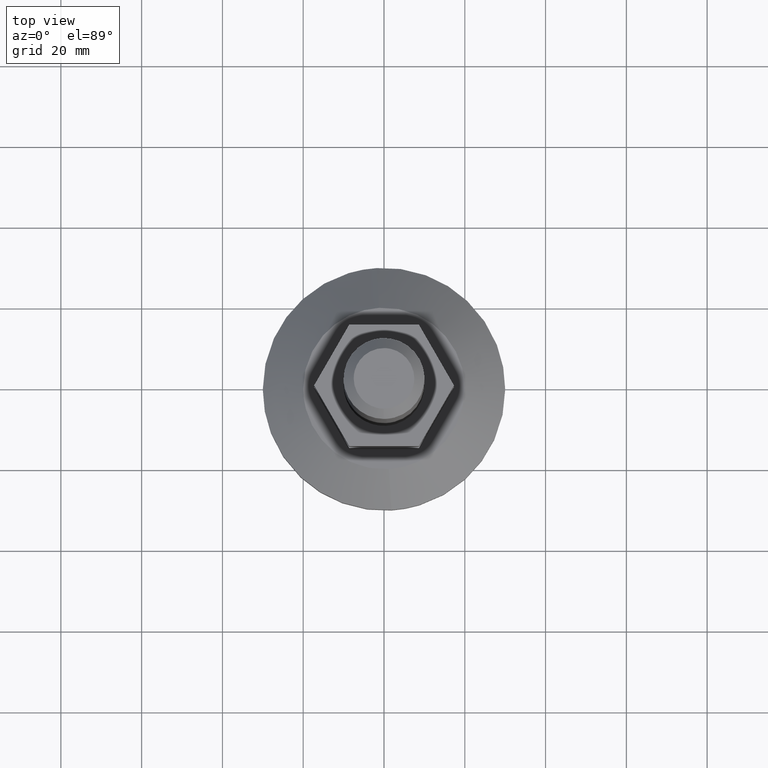
[diagram: clean part render]
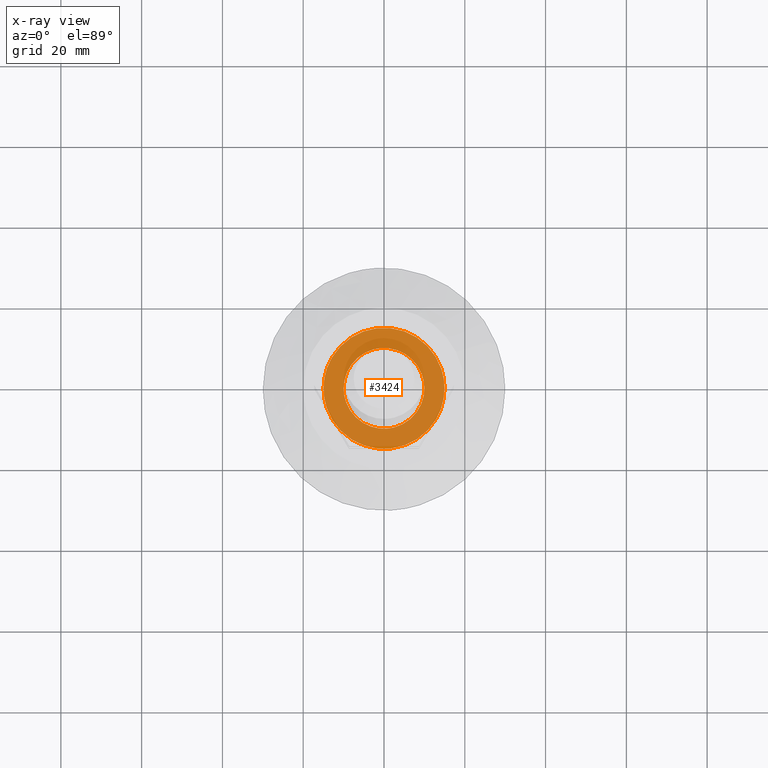
[diagram: x-ray — body ghosted, one internal face saturated and labeled with its STEP entity id]
A machine part, top view, then the same camera in x-ray: the body is ghosted and one INTERNAL B-rep face — a face not visible from any outside direction — is saturated and labeled: STEP entity #3424.
In plain terms, the highlighted face is a freeform B-spline surface patch.
Its self-contained STEP definition (entity closure, byte-faithful):
#3165=CARTESIAN_POINT('',(-14.979491943233780,0.0,17.0));
#3166=VERTEX_POINT('',#3165);
#3167=CARTESIAN_POINT('',(-12.898959870495480,7.615905273660435,17.000000000011870));
#3168=VERTEX_POINT('',#3167);
#3169=CARTESIAN_POINT('',(-14.979491943233780,0.0,17.0));
#3170=CARTESIAN_POINT('',(-14.979491943242630,4.092135117456835,17.000000000005933));
#3171=CARTESIAN_POINT('',(-12.898959870495480,7.615905273660435,17.000000000011870));
#3179=(BOUNDED_CURVE()B_SPLINE_CURVE(2,(#3169,#3170,#3171),.UNSPECIFIED.,.F.,.U.)B_SPLINE_CURVE_WITH_KNOTS((3,3),(0.500000000000000,0.586766463434590),.UNSPECIFIED.)CURVE()GEOMETRIC_REPRESENTATION_ITEM()RATIONAL_B_SPLINE_CURVE((1.0,0.898346764958332,0.867254263526670))REPRESENTATION_ITEM(''));
#3180=EDGE_CURVE('',#3166,#3168,#3179,.T.);
#3182=CARTESIAN_POINT('',(12.898959870495480,-7.615905273660436,17.000000000011870));
#3183=VERTEX_POINT('',#3182);
#3184=CARTESIAN_POINT('',(12.898959870495480,-7.615905273660436,17.000000000011870));
#3185=CARTESIAN_POINT('',(12.355939061593860,-8.535945135159247,17.000000000011749));
#3186=CARTESIAN_POINT('',(11.255245856047290,-10.012791704770050,17.000000000011489));
#3187=CARTESIAN_POINT('',(9.233818262872230,-11.884910439971740,17.000000000010871));
#3188=CARTESIAN_POINT('',(6.967520142916278,-13.366513219408830,17.000000000010179));
#3189=CARTESIAN_POINT('',(4.503400424925649,-14.366064728676591,17.000000000009148));
#3190=CARTESIAN_POINT('',(2.209867328791642,-14.860008507099019,17.000000000008601));
#3191=CARTESIAN_POINT('',(0.177697269651665,-15.022376545748619,17.000000000007311));
#3192=CARTESIAN_POINT('',(-2.063259099052077,-14.904220117988620,17.000000000007109));
#3193=CARTESIAN_POINT('',(-4.408633928564721,-14.390239814968931,17.000000000005421));
#3194=CARTESIAN_POINT('',(-6.774104699345383,-13.434884555213049,17.000000000005059));
#3195=CARTESIAN_POINT('',(-9.085856391081487,-12.027594612187290,17.000000000003428));
#3196=CARTESIAN_POINT('',(-11.352091460838450,-9.956756538293536,17.000000000002629));
#3197=CARTESIAN_POINT('',(-12.997325657555070,-7.609038577363600,17.000000000001570));
#3198=CARTESIAN_POINT('',(-14.152526355217161,-5.109905314694988,17.000000000000899));
#3199=CARTESIAN_POINT('',(-14.820516753843689,-2.696214675193584,17.000000000000359));
#3200=CARTESIAN_POINT('',(-14.979553032833040,-0.864804299307755,17.000000000000082));
#3201=CARTESIAN_POINT('',(-14.979491943233780,0.0,17.0));
#3202=B_SPLINE_CURVE_WITH_KNOTS('',3,(#3184,#3185,#3186,#3187,#3188,#3189,#3190,#3191,#3192,#3193,#3194,#3195,#3196,#3197,#3198,#3199,#3200,#3201),.UNSPECIFIED.,.F.,.U.,(4,1,1,1,1,1,1,1,1,1,1,1,1,1,1,4),(0.000000193124791,3.204985939578720,5.494282050457358,8.241440628251187,11.293827527033869,13.430429593164529,15.261926908598049,17.398384470139121,20.145543239020551,22.434877285480251,25.029400314011781,28.234398562295421,31.592026969199601,33.576041308429950,36.475873719209851,39.070297361389393),.UNSPECIFIED.);
#3203=EDGE_CURVE('',#3183,#3166,#3202,.T.);
#3240=CARTESIAN_POINT('',(14.979491943233780,0.0,17.0));
#3241=VERTEX_POINT('',#3240);
#3242=CARTESIAN_POINT('',(-12.898959870495480,7.615905273660435,17.000000000011870));
#3243=CARTESIAN_POINT('',(-12.459323021680561,8.360663551700027,17.000000000011791));
#3244=CARTESIAN_POINT('',(-11.569188762522430,9.607416043037960,17.000000000011521));
#3245=CARTESIAN_POINT('',(-10.074245838983940,11.140548803674260,17.000000000011202));
#3246=CARTESIAN_POINT('',(-8.477095916517747,12.407636310019621,17.000000000010491));
#3247=CARTESIAN_POINT('',(-6.719461179547794,13.444844393279050,17.000000000010111));
#3248=CARTESIAN_POINT('',(-4.550717774615458,14.337561573342111,17.000000000009319));
#3249=CARTESIAN_POINT('',(-2.413126938538743,14.843840887499731,17.000000000008441));
#3250=CARTESIAN_POINT('',(0.076340367094919,15.042701500006540,17.000000000007599));
#3251=CARTESIAN_POINT('',(2.878887352081919,14.823420865128680,17.000000000006331));
#3252=CARTESIAN_POINT('',(6.015308785531896,13.862745985099149,17.000000000005389));
#3253=CARTESIAN_POINT('',(8.580870359859564,12.371324876267870,17.000000000003421));
#3254=CARTESIAN_POINT('',(10.726212210151161,10.565517190564430,17.000000000002650));
#3255=CARTESIAN_POINT('',(12.501720576632779,8.448693589793173,17.000000000002689));
#3256=CARTESIAN_POINT('',(13.943158899146299,5.740055548387402,17.000000000000512));
#3257=CARTESIAN_POINT('',(14.791727722069091,2.899655267786492,17.000000000000501));
#3258=CARTESIAN_POINT('',(14.979610299450510,0.966563343558007,17.000000000000121));
#3259=CARTESIAN_POINT('',(14.979491943233780,0.0,17.0));
#3260=B_SPLINE_CURVE_WITH_KNOTS('',3,(#3242,#3243,#3244,#3245,#3246,#3247,#3248,#3249,#3250,#3251,#3252,#3253,#3254,#3255,#3256,#3257,#3258,#3259),.UNSPECIFIED.,.F.,.U.,(4,1,1,1,1,1,1,1,1,1,1,1,1,1,1,4),(0.000000193124180,2.594512440087492,4.578555090824175,6.409985609318852,8.699286737610169,10.683311373982569,13.430429593163829,15.261926908597450,18.161481477255151,21.824416071907581,25.029400314011632,27.013449183905859,30.218445413533740,33.270865888804181,36.170617567722502,39.070297361389407),.UNSPECIFIED.);
#3261=EDGE_CURVE('',#3168,#3241,#3260,.T.);
#3269=CARTESIAN_POINT('',(14.979491943233780,0.0,17.0));
#3270=CARTESIAN_POINT('',(14.979491943242632,-4.092135117456835,17.000000000005926));
#3271=CARTESIAN_POINT('',(12.898959870495483,-7.615905273660436,17.000000000011866));
#3279=(BOUNDED_CURVE()B_SPLINE_CURVE(2,(#3269,#3270,#3271),.UNSPECIFIED.,.F.,.U.)B_SPLINE_CURVE_WITH_KNOTS((3,3),(0.0,0.086766463434591),.UNSPECIFIED.)CURVE()GEOMETRIC_REPRESENTATION_ITEM()RATIONAL_B_SPLINE_CURVE((1.0,0.898346764958332,0.867254263526670))REPRESENTATION_ITEM(''));
#3280=EDGE_CURVE('',#3241,#3183,#3279,.T.);
#3304=CARTESIAN_POINT('',(0.610485395540105,-9.981347984206954,17.000000000000131));
#3305=VERTEX_POINT('',#3304);
#3311=CARTESIAN_POINT('',(-10.0,0.0,17.000000000000249));
#3312=VERTEX_POINT('',#3311);
#3313=CARTESIAN_POINT('',(0.610485395540105,-9.981347984206954,17.000000000000128));
#3314=CARTESIAN_POINT('',(0.305527633081925,-10.0,17.000000000000245));
#3315=CARTESIAN_POINT('',(0.0,-10.0,17.000000000000249));
#3316=CARTESIAN_POINT('',(-10.000000000000002,-10.000000000000002,17.000000000000256));
#3317=CARTESIAN_POINT('',(-10.0,0.0,17.000000000000249));
#3325=(BOUNDED_CURVE()B_SPLINE_CURVE(2,(#3313,#3314,#3315,#3316,#3317),.UNSPECIFIED.,.F.,.U.)B_SPLINE_CURVE_WITH_KNOTS((3,2,3),(0.239332962238657,0.250000000000000,0.500000000000000),.UNSPECIFIED.)CURVE()GEOMETRIC_REPRESENTATION_ITEM()RATIONAL_B_SPLINE_CURVE((0.976072041666106,0.987502787899503,1.0,0.707106781186548,1.0))REPRESENTATION_ITEM(''));
#3326=EDGE_CURVE('',#3305,#3312,#3325,.T.);
#3328=CARTESIAN_POINT('',(-0.610485395540104,9.981347984206954,17.000000000000131));
#3329=VERTEX_POINT('',#3328);
#3330=CARTESIAN_POINT('',(-10.0,0.0,17.000000000000249));
#3331=CARTESIAN_POINT('',(-10.0,9.407060668876094,17.000000000000259));
#3332=CARTESIAN_POINT('',(-0.610485395540108,9.981347984206957,17.000000000000256));
#3340=(BOUNDED_CURVE()B_SPLINE_CURVE(2,(#3330,#3331,#3332),.UNSPECIFIED.,.F.,.U.)B_SPLINE_CURVE_WITH_KNOTS((3,3),(0.500000000000000,0.739332962238657),.UNSPECIFIED.)CURVE()GEOMETRIC_REPRESENTATION_ITEM()RATIONAL_B_SPLINE_CURVE((1.0,0.719603993287045,0.976072041666105))REPRESENTATION_ITEM(''));
#3341=EDGE_CURVE('',#3312,#3329,#3340,.T.);
#3373=CARTESIAN_POINT('',(10.0,0.0,17.000000000000249));
#3374=VERTEX_POINT('',#3373);
#3375=CARTESIAN_POINT('',(-0.610485395540104,9.981347984206954,17.000000000000131));
#3376=CARTESIAN_POINT('',(-0.305527633081927,10.000000000000002,17.000000000000245));
#3377=CARTESIAN_POINT('',(0.0,10.0,17.000000000000249));
#3378=CARTESIAN_POINT('',(10.000000000000002,10.000000000000002,17.000000000000256));
#3379=CARTESIAN_POINT('',(10.0,0.0,17.000000000000249));
#3387=(BOUNDED_CURVE()B_SPLINE_CURVE(2,(#3375,#3376,#3377,#3378,#3379),.UNSPECIFIED.,.F.,.U.)B_SPLINE_CURVE_WITH_KNOTS((3,2,3),(0.739332962238657,0.750000000000000,1.0),.UNSPECIFIED.)CURVE()GEOMETRIC_REPRESENTATION_ITEM()RATIONAL_B_SPLINE_CURVE((0.976072041666105,0.987502787899503,1.0,0.707106781186548,1.0))REPRESENTATION_ITEM(''));
#3388=EDGE_CURVE('',#3329,#3374,#3387,.T.);
#3390=CARTESIAN_POINT('',(10.0,0.0,17.000000000000249));
#3391=CARTESIAN_POINT('',(10.0,-9.407060668876099,17.000000000000245));
#3392=CARTESIAN_POINT('',(0.610485395540105,-9.981347984206956,17.000000000000252));
#3400=(BOUNDED_CURVE()B_SPLINE_CURVE(2,(#3390,#3391,#3392),.UNSPECIFIED.,.F.,.U.)B_SPLINE_CURVE_WITH_KNOTS((3,3),(0.0,0.239332962238657),.UNSPECIFIED.)CURVE()GEOMETRIC_REPRESENTATION_ITEM()RATIONAL_B_SPLINE_CURVE((1.0,0.719603993287045,0.976072041666106))REPRESENTATION_ITEM(''));
#3401=EDGE_CURVE('',#3374,#3305,#3400,.T.);
#3407=CARTESIAN_POINT('',(-16.475943130296510,-16.475661989388058,17.0));
#3408=CARTESIAN_POINT('',(16.475943933859082,-16.475661989388058,17.0));
#3409=CARTESIAN_POINT('',(-16.475943130296510,16.475661185825491,17.0));
#3410=CARTESIAN_POINT('',(16.475943933859082,16.475661185825491,17.0));
#3411=B_SPLINE_SURFACE_WITH_KNOTS('',1,1,((#3407,#3409),(#3408,#3410)),.UNSPECIFIED.,.F.,.F.,.U.,(2,2),(2,2),(0.0,32.951887064155592),(0.0,32.951323175213552),.UNSPECIFIED.);
#3412=ORIENTED_EDGE('',*,*,#3280,.T.);
#3413=ORIENTED_EDGE('',*,*,#3203,.T.);
#3414=ORIENTED_EDGE('',*,*,#3180,.T.);
#3415=ORIENTED_EDGE('',*,*,#3261,.T.);
#3416=EDGE_LOOP('',(#3412,#3413,#3414,#3415));
#3417=FACE_OUTER_BOUND('',#3416,.T.);
#3418=ORIENTED_EDGE('',*,*,#3341,.F.);
#3419=ORIENTED_EDGE('',*,*,#3326,.F.);
#3420=ORIENTED_EDGE('',*,*,#3401,.F.);
#3421=ORIENTED_EDGE('',*,*,#3388,.F.);
#3422=EDGE_LOOP('',(#3418,#3419,#3420,#3421));
#3423=FACE_BOUND('',#3422,.T.);
#3424=ADVANCED_FACE('',(#3417,#3423),#3411,.F.);